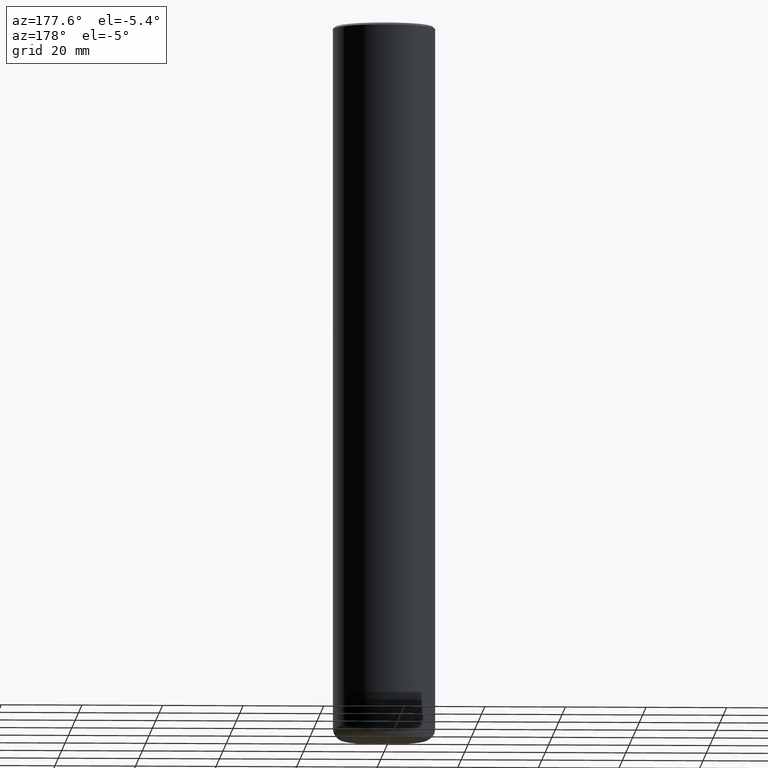
[diagram: clean part render]
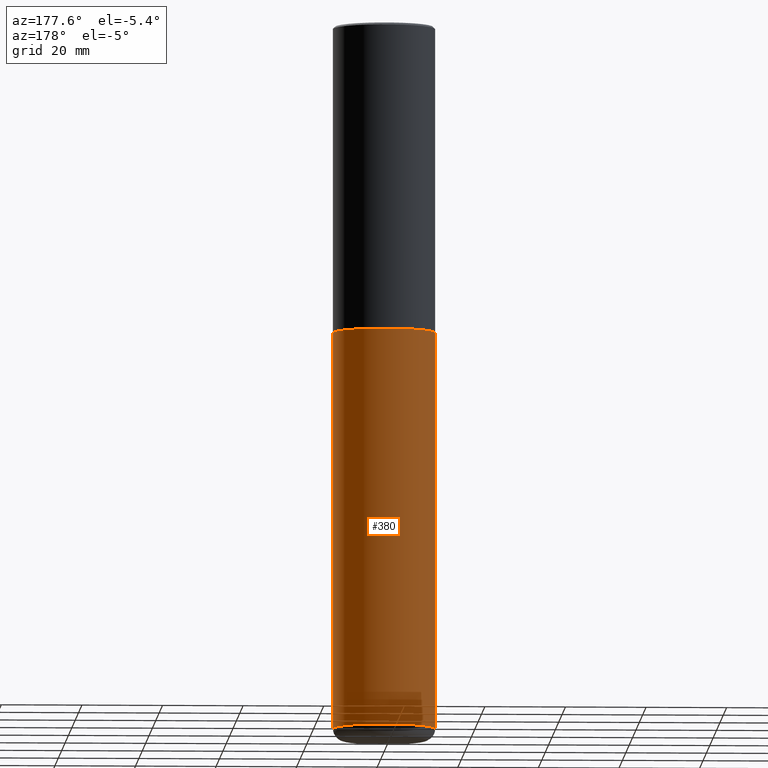
[diagram: same view with one face highlighted and labeled with its STEP entity id]
A machine part, auxiliary view. The second image highlights one B-rep face of the part: STEP entity #380.
In plain terms, the highlighted cylindrical surface (partial cylindrical patch) has radius 12.7 mm, axis along (-0, 0, 1).
Its self-contained STEP definition (entity closure, byte-faithful):
#6 = DIRECTION ( 'NONE',  ( -2.445468806185136877E-29, 3.491481338843145188E-15, 1.000000000000000000 ) ) ;
#9 = VERTEX_POINT ( 'NONE', #221 ) ;
#12 = LINE ( 'NONE', #154, #198 ) ;
#14 = EDGE_CURVE ( 'NONE', #9, #278, #351, .T. ) ;
#17 = DIRECTION ( 'NONE',  ( -2.445468806185136597E-29, 3.491481338843145583E-15, 1.000000000000000000 ) ) ;
#19 = DIRECTION ( 'NONE',  ( -2.445468806185136597E-29, 3.491481338843145583E-15, 1.000000000000000000 ) ) ;
#22 = CIRCLE ( 'NONE', #284, 0.5000000000000001110 ) ;
#59 = ORIENTED_EDGE ( 'NONE', *, *, #14, .F. ) ;
#71 = EDGE_LOOP ( 'NONE', ( #299, #341, #59, #334 ) ) ;
#91 = CARTESIAN_POINT ( 'NONE',  ( 0.000000000000000000, 0.000000000000000000, 0.000000000000000000 ) ) ;
#111 = AXIS2_PLACEMENT_3D ( 'NONE', #152, #17, #157 ) ;
#112 = CARTESIAN_POINT ( 'NONE',  ( 1.682482538655373988E-28, -2.402139161124084205E-14, -6.879999999999999893 ) ) ;
#152 = CARTESIAN_POINT ( 'NONE',  ( 7.336406418555408669E-29, -1.047444401652943478E-14, -2.999999999999999556 ) ) ;
#154 = CARTESIAN_POINT ( 'NONE',  ( -0.5000000000000000000, 3.552713678800500929E-15, -2.459467545127452891E-29 ) ) ;
#157 = DIRECTION ( 'NONE',  ( 1.000000000000000000, -6.982962677686266711E-15, 0.000000000000000000 ) ) ;
#174 = CARTESIAN_POINT ( 'NONE',  ( -0.5000000000000000000, -2.046867793244033797E-14, -6.879999999999999893 ) ) ;
#180 = EDGE_CURVE ( 'NONE', #356, #9, #234, .T. ) ;
#197 = DIRECTION ( 'NONE',  ( 1.000000000000000000, -6.982962677686266711E-15, 4.876176775795935793E-29 ) ) ;
#198 = VECTOR ( 'NONE', #409, 39.37007874015748143 ) ;
#205 = VERTEX_POINT ( 'NONE', #174 ) ;
#221 = CARTESIAN_POINT ( 'NONE',  ( 0.5000000000000000000, -1.396592535537256813E-14, -2.999999999999999556 ) ) ;
#223 = FACE_OUTER_BOUND ( 'NONE', #71, .T. ) ;
#234 = LINE ( 'NONE', #297, #386 ) ;
#250 = CARTESIAN_POINT ( 'NONE',  ( -0.5000000000000000000, -1.369520413508463748E-14, -2.999999999999999556 ) ) ;
#253 = CYLINDRICAL_SURFACE ( 'NONE', #275, 0.5000000000000000000 ) ;
#272 = EDGE_CURVE ( 'NONE', #205, #278, #12, .T. ) ;
#275 = AXIS2_PLACEMENT_3D ( 'NONE', #91, #348, #197 ) ;
#278 = VERTEX_POINT ( 'NONE', #250 ) ;
#284 = AXIS2_PLACEMENT_3D ( 'NONE', #112, #19, #344 ) ;
#297 = CARTESIAN_POINT ( 'NONE',  ( 0.5000000000000000000, -3.491481338843133355E-15, 2.438088387897967896E-29 ) ) ;
#299 = ORIENTED_EDGE ( 'NONE', *, *, #322, .T. ) ;
#322 = EDGE_CURVE ( 'NONE', #356, #205, #22, .T. ) ;
#334 = ORIENTED_EDGE ( 'NONE', *, *, #180, .F. ) ;
#341 = ORIENTED_EDGE ( 'NONE', *, *, #272, .T. ) ;
#344 = DIRECTION ( 'NONE',  ( 1.000000000000000000, -6.982962677686269077E-15, 0.000000000000000000 ) ) ;
#348 = DIRECTION ( 'NONE',  ( -2.445468806185136597E-29, 3.491481338843145583E-15, 1.000000000000000000 ) ) ;
#351 = CIRCLE ( 'NONE', #111, 0.5000000000000000000 ) ;
#356 = VERTEX_POINT ( 'NONE', #407 ) ;
#380 = ADVANCED_FACE ( 'NONE', ( #223 ), #253, .T. ) ;
#386 = VECTOR ( 'NONE', #6, 39.37007874015748143 ) ;
#407 = CARTESIAN_POINT ( 'NONE',  ( 0.5000000000000000000, -2.751287295008397541E-14, -6.879999999999999893 ) ) ;
#409 = DIRECTION ( 'NONE',  ( -2.445468806185136877E-29, 3.491481338843145188E-15, 1.000000000000000000 ) ) ;